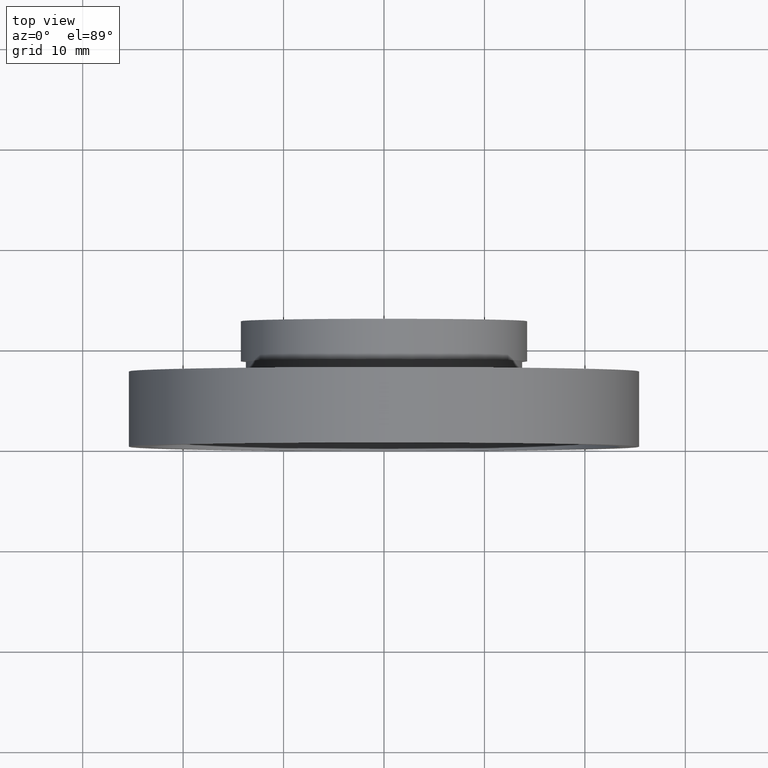
[diagram: clean part render]
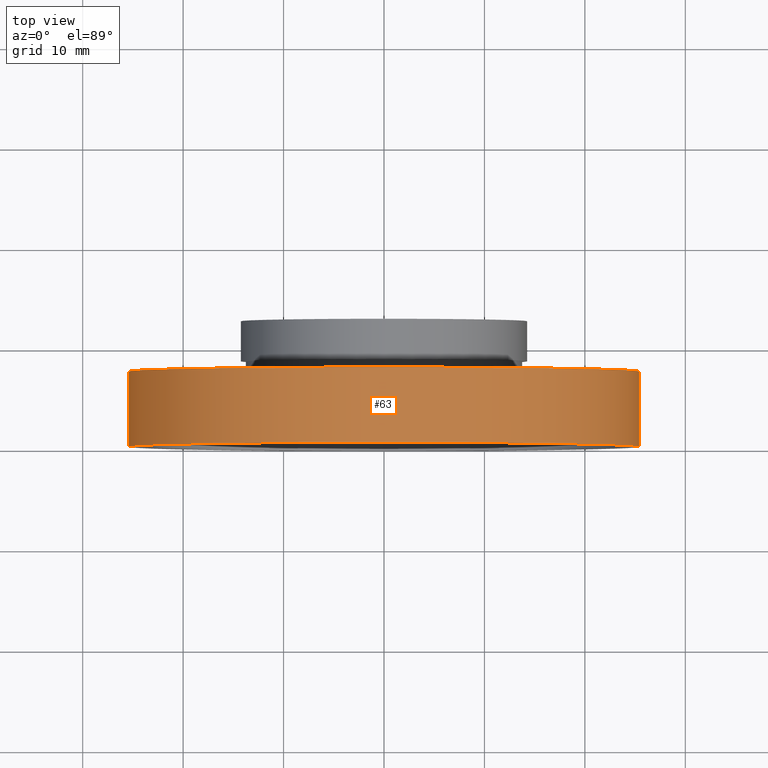
[diagram: same view with one face highlighted and labeled with its STEP entity id]
A machine part, top view. The second image highlights one B-rep face of the part: STEP entity #63.
In plain terms, the highlighted cylindrical surface (partial cylindrical patch) has radius 25.4 mm, axis along (-0, 1, -0).
Its self-contained STEP definition (entity closure, byte-faithful):
#11 = CARTESIAN_POINT ( 'NONE',  ( 1.149455719078123100E-015, 7.499999999999996400, 0.0000000000000000000 ) ) ;
#27 = LINE ( 'NONE', #123, #604 ) ;
#34 = CARTESIAN_POINT ( 'NONE',  ( 0.0000000000000000000, 16.88601823708207700, 0.0000000000000000000 ) ) ;
#36 = EDGE_CURVE ( 'NONE', #296, #390, #270, .T. ) ;
#38 = EDGE_CURVE ( 'NONE', #445, #216, #511, .T. ) ;
#63 = ADVANCED_FACE ( 'NONE', ( #466 ), #297, .T. ) ;
#65 = DIRECTION ( 'NONE',  ( -1.224646799147351000E-016, 1.000000000000000000, -0.0000000000000000000 ) ) ;
#80 = DIRECTION ( 'NONE',  ( -1.000000000000000000, -1.365923996832131600E-016, 0.0000000000000000000 ) ) ;
#101 = CARTESIAN_POINT ( 'NONE',  ( 25.39999999999999900, 16.88601823708208000, 3.110602869834276900E-015 ) ) ;
#122 = EDGE_CURVE ( 'NONE', #216, #390, #139, .T. ) ;
#123 = CARTESIAN_POINT ( 'NONE',  ( -25.39999999999999900, 16.88601823708207300, 0.0000000000000000000 ) ) ;
#134 = EDGE_CURVE ( 'NONE', #445, #296, #27, .T. ) ;
#139 = LINE ( 'NONE', #101, #210 ) ;
#144 = CARTESIAN_POINT ( 'NONE',  ( 2.067940818438636500E-015, -3.469446951953614200E-015, 0.0000000000000000000 ) ) ;
#176 = CARTESIAN_POINT ( 'NONE',  ( 25.39999999999999900, 7.500000000000000000, 3.110602869834276900E-015 ) ) ;
#210 = VECTOR ( 'NONE', #328, 1000.000000000000000 ) ;
#211 = CARTESIAN_POINT ( 'NONE',  ( 25.39999999999999900, -3.588440821193433400E-016, 3.110602869834276900E-015 ) ) ;
#216 = VERTEX_POINT ( 'NONE', #211 ) ;
#260 = DIRECTION ( 'NONE',  ( -1.224646799147351000E-016, 1.000000000000000000, -0.0000000000000000000 ) ) ;
#262 = ORIENTED_EDGE ( 'NONE', *, *, #134, .F. ) ;
#270 = CIRCLE ( 'NONE', #281, 25.39999999999999900 ) ;
#281 = AXIS2_PLACEMENT_3D ( 'NONE', #11, #260, #566 ) ;
#282 = DIRECTION ( 'NONE',  ( -1.000000000000000000, -1.224646799147351000E-016, 0.0000000000000000000 ) ) ;
#296 = VERTEX_POINT ( 'NONE', #411 ) ;
#297 = CYLINDRICAL_SURFACE ( 'NONE', #554, 25.39999999999999900 ) ;
#316 = CARTESIAN_POINT ( 'NONE',  ( -25.39999999999999100, -6.580049821787884700E-015, 0.0000000000000000000 ) ) ;
#328 = DIRECTION ( 'NONE',  ( -1.224646799147351000E-016, 1.000000000000000000, -0.0000000000000000000 ) ) ;
#389 = AXIS2_PLACEMENT_3D ( 'NONE', #144, #65, #282 ) ;
#390 = VERTEX_POINT ( 'NONE', #176 ) ;
#411 = CARTESIAN_POINT ( 'NONE',  ( -25.39999999999999900, 7.499999999999992900, 0.0000000000000000000 ) ) ;
#415 = EDGE_LOOP ( 'NONE', ( #422, #600, #452, #262 ) ) ;
#422 = ORIENTED_EDGE ( 'NONE', *, *, #38, .T. ) ;
#433 = DIRECTION ( 'NONE',  ( -1.224646799147351000E-016, 1.000000000000000000, -0.0000000000000000000 ) ) ;
#445 = VERTEX_POINT ( 'NONE', #316 ) ;
#452 = ORIENTED_EDGE ( 'NONE', *, *, #36, .F. ) ;
#466 = FACE_OUTER_BOUND ( 'NONE', #415, .T. ) ;
#511 = CIRCLE ( 'NONE', #389, 25.39999999999999500 ) ;
#554 = AXIS2_PLACEMENT_3D ( 'NONE', #34, #433, #80 ) ;
#566 = DIRECTION ( 'NONE',  ( -1.000000000000000000, -1.365923996832131600E-016, 0.0000000000000000000 ) ) ;
#598 = DIRECTION ( 'NONE',  ( -1.224646799147351000E-016, 1.000000000000000000, -0.0000000000000000000 ) ) ;
#600 = ORIENTED_EDGE ( 'NONE', *, *, #122, .T. ) ;
#604 = VECTOR ( 'NONE', #598, 1000.000000000000000 ) ;